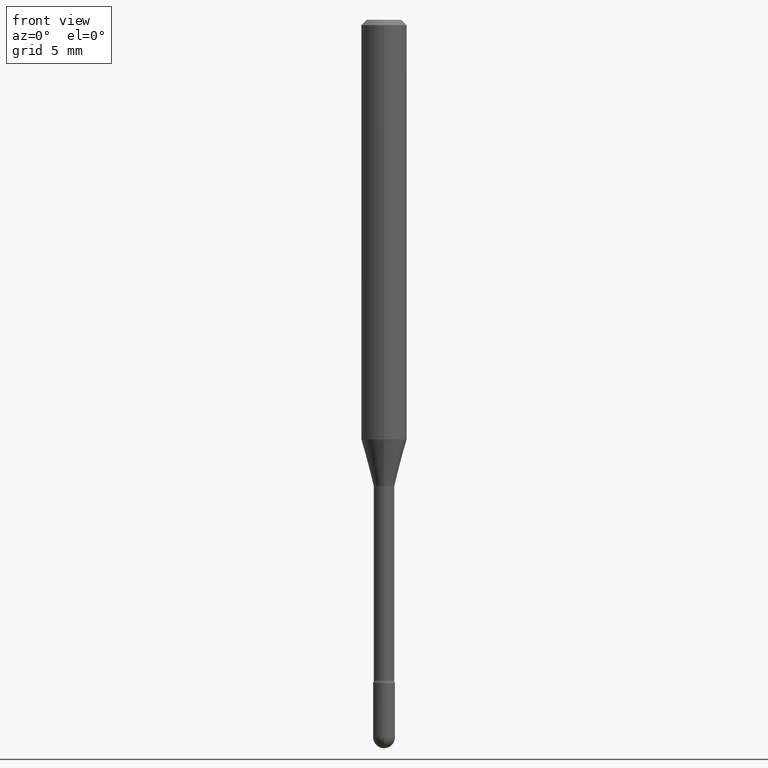
[diagram: clean part render]
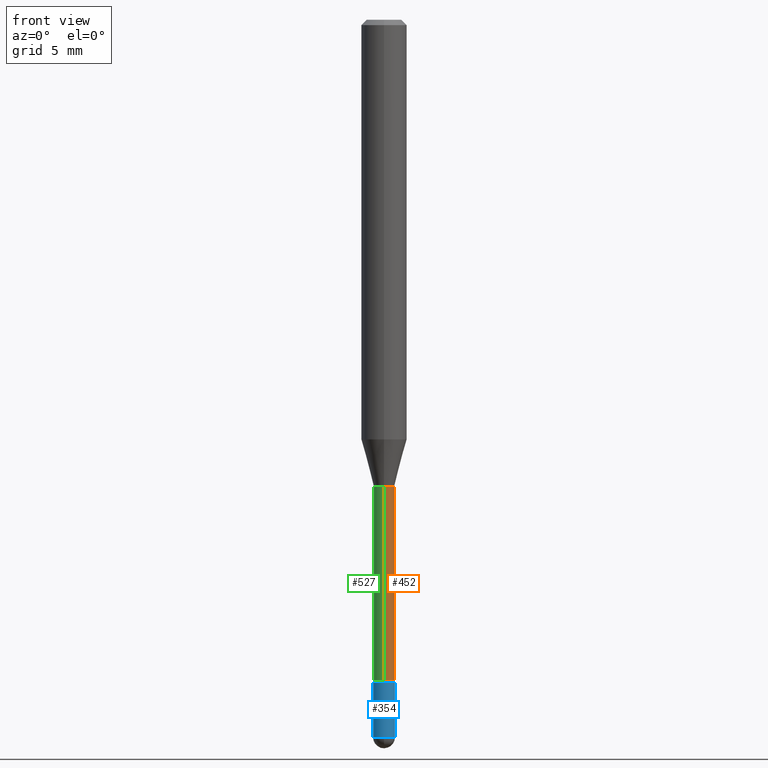
[diagram: same view with three faces highlighted in distinct colors, each labeled with its STEP entity id]
A machine part, front view with three faces highlighted in distinct colors.
Their STEP definitions:

[orange] entity #452 — the highlighted cylindrical surface (edge-blend (fillet) strip) has radius 0.7163 mm, axis along (-0, 0, 1).
#3 = CARTESIAN_POINT ( 'NONE',  ( -1.969195475107212711E-16, -0.02820000000000447149, -1.281974787463810994 ) ) ;
#4 = ORIENTED_EDGE ( 'NONE', *, *, #437, .T. ) ;
#27 = DIRECTION ( 'NONE',  ( -6.982962677686266711E-15, -1.000000000000000000, 0.000000000000000000 ) ) ;
#37 = DIRECTION ( 'NONE',  ( -6.982962677686265133E-15, -1.000000000000000000, 3.491497881522818297E-15 ) ) ;
#39 = ORIENTED_EDGE ( 'NONE', *, *, #45, .F. ) ;
#45 = EDGE_CURVE ( 'NONE', #384, #107, #211, .T. ) ;
#78 = AXIS2_PLACEMENT_3D ( 'NONE', #423, #160, #37 ) ;
#98 = CARTESIAN_POINT ( 'NONE',  ( 2.003730514843928186E-16, 0.02819999999999552032, -1.281974787463810994 ) ) ;
#107 = VERTEX_POINT ( 'NONE', #3 ) ;
#119 = DIRECTION ( 'NONE',  ( -2.445457254493661418E-29, 3.491497881522819481E-15, 1.000000000000000000 ) ) ;
#160 = DIRECTION ( 'NONE',  ( -2.445457254493661418E-29, 3.491497881522819481E-15, 1.000000000000000000 ) ) ;
#165 = LINE ( 'NONE', #472, #167 ) ;
#167 = VECTOR ( 'NONE', #344, 39.37007874015748143 ) ;
#177 = AXIS2_PLACEMENT_3D ( 'NONE', #381, #119, #27 ) ;
#194 = CARTESIAN_POINT ( 'NONE',  ( -1.969195475107089945E-16, -0.02820000000000642132, -1.812875394747777591 ) ) ;
#195 = ORIENTED_EDGE ( 'NONE', *, *, #480, .T. ) ;
#209 = CYLINDRICAL_SURFACE ( 'NONE', #78, 0.02820000000000004101 ) ;
#211 = LINE ( 'NONE', #254, #267 ) ;
#248 = VERTEX_POINT ( 'NONE', #98 ) ;
#254 = CARTESIAN_POINT ( 'NONE',  ( -1.969195475107529735E-16, -0.02820000000000004101, 5.765336391501896876E-16 ) ) ;
#259 = DIRECTION ( 'NONE',  ( -2.445457254493661418E-29, 3.491497881522819481E-15, 1.000000000000000000 ) ) ;
#267 = VECTOR ( 'NONE', #347, 39.37007874015748143 ) ;
#296 = DIRECTION ( 'NONE',  ( -6.982962677686265133E-15, -1.000000000000000000, 0.000000000000000000 ) ) ;
#335 = CIRCLE ( 'NONE', #177, 0.02820000000000008958 ) ;
#344 = DIRECTION ( 'NONE',  ( -2.445457254493661698E-29, 3.491497881522819086E-15, 1.000000000000000000 ) ) ;
#347 = DIRECTION ( 'NONE',  ( -2.445457254493661698E-29, 3.491497881522819086E-15, 1.000000000000000000 ) ) ;
#370 = CIRCLE ( 'NONE', #449, 0.02819999999999999243 ) ;
#381 = CARTESIAN_POINT ( 'NONE',  ( 4.433309285579012941E-29, -6.329650600226710445E-15, -1.812875394747777591 ) ) ;
#384 = VERTEX_POINT ( 'NONE', #194 ) ;
#417 = EDGE_LOOP ( 'NONE', ( #195, #4, #545, #39 ) ) ;
#422 = VERTEX_POINT ( 'NONE', #559 ) ;
#423 = CARTESIAN_POINT ( 'NONE',  ( -1.169113584055446105E-44, 1.669184350826100908E-30, 4.780733988912460139E-16 ) ) ;
#425 = EDGE_CURVE ( 'NONE', #107, #248, #370, .T. ) ;
#437 = EDGE_CURVE ( 'NONE', #422, #248, #165, .T. ) ;
#449 = AXIS2_PLACEMENT_3D ( 'NONE', #481, #259, #296 ) ;
#452 = ADVANCED_FACE ( 'NONE', ( #557 ), #209, .T. ) ;
#472 = CARTESIAN_POINT ( 'NONE',  ( 2.003730514843484945E-16, 0.02820000000000004101, 3.796131586323024389E-16 ) ) ;
#480 = EDGE_CURVE ( 'NONE', #384, #422, #335, .T. ) ;
#481 = CARTESIAN_POINT ( 'NONE',  ( 3.135014544081346677E-29, -4.476012254595563164E-15, -1.281974787463810994 ) ) ;
#545 = ORIENTED_EDGE ( 'NONE', *, *, #425, .F. ) ;
#557 = FACE_OUTER_BOUND ( 'NONE', #417, .T. ) ;
#559 = CARTESIAN_POINT ( 'NONE',  ( 2.067679361062337555E-16, 0.02819999999999376131, -1.812875394747777591 ) ) ;

[blue] entity #354 — the highlighted cylindrical surface (edge-blend (fillet) strip) has radius 0.762 mm, axis along (-0, 0, 1).
#14 = CARTESIAN_POINT ( 'NONE',  ( -0.03000000000000000583, 2.131628207280300972E-16, -1.475680527076471882E-30 ) ) ;
#28 = ORIENTED_EDGE ( 'NONE', *, *, #532, .T. ) ;
#34 = CARTESIAN_POINT ( 'NONE',  ( 4.450753227256948741E-29, -6.354496036694524637E-15, -1.820000000000000062 ) ) ;
#57 = DIRECTION ( 'NONE',  ( 1.000000000000000000, -6.982962677686266711E-15, 0.000000000000000000 ) ) ;
#64 = CARTESIAN_POINT ( 'NONE',  ( -0.02999999999999999889, -6.403194316379730971E-15, -1.820000000000000062 ) ) ;
#76 = VERTEX_POINT ( 'NONE', #493 ) ;
#101 = ORIENTED_EDGE ( 'NONE', *, *, #312, .T. ) ;
#103 = DIRECTION ( 'NONE',  ( -2.445468806185136877E-29, 3.491481338843145188E-15, 1.000000000000000000 ) ) ;
#105 = LINE ( 'NONE', #14, #253 ) ;
#109 = ORIENTED_EDGE ( 'NONE', *, *, #519, .F. ) ;
#114 = DIRECTION ( 'NONE',  ( -2.445468806185136597E-29, 3.491481338843145583E-15, 1.000000000000000000 ) ) ;
#118 = ORIENTED_EDGE ( 'NONE', *, *, #290, .F. ) ;
#145 = DIRECTION ( 'NONE',  ( 1.000000000000000000, -6.982962677686266711E-15, 4.876176775795935793E-29 ) ) ;
#149 = CIRCLE ( 'NONE', #413, 0.03000000000000000583 ) ;
#151 = VERTEX_POINT ( 'NONE', #268 ) ;
#157 = DIRECTION ( 'NONE',  ( -2.445468806185136877E-29, 3.491481338843145188E-15, 1.000000000000000000 ) ) ;
#190 = CYLINDRICAL_SURFACE ( 'NONE', #520, 0.03000000000000000583 ) ;
#191 = ORIENTED_EDGE ( 'NONE', *, *, #555, .T. ) ;
#223 = VECTOR ( 'NONE', #157, 39.37007874015748143 ) ;
#236 = VERTEX_POINT ( 'NONE', #64 ) ;
#239 = CARTESIAN_POINT ( 'NONE',  ( 0.000000000000000000, 0.000000000000000000, 0.000000000000000000 ) ) ;
#245 = DIRECTION ( 'NONE',  ( -2.445468806185136597E-29, 3.491481338843145583E-15, 1.000000000000000000 ) ) ;
#253 = VECTOR ( 'NONE', #103, 39.37007874015748143 ) ;
#268 = CARTESIAN_POINT ( 'NONE',  ( -0.03000000000000000583, -6.403194316379730971E-15, -1.969999999999999973 ) ) ;
#290 = EDGE_CURVE ( 'NONE', #151, #236, #105, .T. ) ;
#297 = CIRCLE ( 'NONE', #361, 0.02999999999999999889 ) ;
#312 = EDGE_CURVE ( 'NONE', #464, #382, #438, .T. ) ;
#314 = AXIS2_PLACEMENT_3D ( 'NONE', #466, #245, #57 ) ;
#320 = FACE_OUTER_BOUND ( 'NONE', #337, .T. ) ;
#336 = CARTESIAN_POINT ( 'NONE',  ( 4.817573548184719118E-29, -6.878218237520997007E-15, -1.969999999999999973 ) ) ;
#337 = EDGE_LOOP ( 'NONE', ( #118, #191, #101, #28, #109 ) ) ;
#340 = CARTESIAN_POINT ( 'NONE',  ( -2.131628207279818041E-16, -0.03000000000000686839, -1.969999999999999973 ) ) ;
#354 = ADVANCED_FACE ( 'NONE', ( #320 ), #190, .T. ) ;
#361 = AXIS2_PLACEMENT_3D ( 'NONE', #34, #433, #512 ) ;
#382 = VERTEX_POINT ( 'NONE', #461 ) ;
#394 = DIRECTION ( 'NONE',  ( 1.000000000000000000, -6.982962677686266711E-15, 0.000000000000000000 ) ) ;
#413 = AXIS2_PLACEMENT_3D ( 'NONE', #336, #114, #394 ) ;
#418 = DIRECTION ( 'NONE',  ( -2.445468806185136597E-29, 3.491481338843145583E-15, 1.000000000000000000 ) ) ;
#433 = DIRECTION ( 'NONE',  ( -2.445468806185136597E-29, 3.491481338843145583E-15, 1.000000000000000000 ) ) ;
#438 = CIRCLE ( 'NONE', #314, 0.03000000000000000583 ) ;
#461 = CARTESIAN_POINT ( 'NONE',  ( 0.03000000000000000583, -6.825846017438348744E-15, -1.969999999999999973 ) ) ;
#464 = VERTEX_POINT ( 'NONE', #340 ) ;
#466 = CARTESIAN_POINT ( 'NONE',  ( 4.817573548184719118E-29, -6.878218237520997007E-15, -1.969999999999999973 ) ) ;
#470 = LINE ( 'NONE', #551, #223 ) ;
#493 = CARTESIAN_POINT ( 'NONE',  ( 0.02999999999999999889, -6.563984917025112954E-15, -1.820000000000000062 ) ) ;
#512 = DIRECTION ( 'NONE',  ( 1.000000000000000000, -6.982962677686268288E-15, 0.000000000000000000 ) ) ;
#519 = EDGE_CURVE ( 'NONE', #236, #76, #297, .T. ) ;
#520 = AXIS2_PLACEMENT_3D ( 'NONE', #239, #418, #145 ) ;
#532 = EDGE_CURVE ( 'NONE', #382, #76, #470, .T. ) ;
#551 = CARTESIAN_POINT ( 'NONE',  ( 0.03000000000000000583, -2.094888803305880457E-16, 1.462853032738781053E-30 ) ) ;
#555 = EDGE_CURVE ( 'NONE', #151, #464, #149, .T. ) ;

[green] entity #527 — the highlighted cylindrical surface (edge-blend (fillet) strip) has radius 0.7163 mm, axis along (-0, 0, 1).
#3 = CARTESIAN_POINT ( 'NONE',  ( -1.969195475107212711E-16, -0.02820000000000447149, -1.281974787463810994 ) ) ;
#9 = CARTESIAN_POINT ( 'NONE',  ( 3.135014544081346677E-29, -4.476012254595563164E-15, -1.281974787463810994 ) ) ;
#31 = CIRCLE ( 'NONE', #121, 0.02820000000000008958 ) ;
#32 = AXIS2_PLACEMENT_3D ( 'NONE', #9, #220, #213 ) ;
#45 = EDGE_CURVE ( 'NONE', #384, #107, #211, .T. ) ;
#68 = DIRECTION ( 'NONE',  ( -6.982962677686266711E-15, -1.000000000000000000, 0.000000000000000000 ) ) ;
#85 = AXIS2_PLACEMENT_3D ( 'NONE', #294, #111, #475 ) ;
#98 = CARTESIAN_POINT ( 'NONE',  ( 2.003730514843928186E-16, 0.02819999999999552032, -1.281974787463810994 ) ) ;
#107 = VERTEX_POINT ( 'NONE', #3 ) ;
#111 = DIRECTION ( 'NONE',  ( -2.445457254493661418E-29, 3.491497881522819481E-15, 1.000000000000000000 ) ) ;
#113 = ORIENTED_EDGE ( 'NONE', *, *, #252, .T. ) ;
#121 = AXIS2_PLACEMENT_3D ( 'NONE', #278, #371, #68 ) ;
#158 = CIRCLE ( 'NONE', #32, 0.02819999999999999243 ) ;
#165 = LINE ( 'NONE', #472, #167 ) ;
#167 = VECTOR ( 'NONE', #344, 39.37007874015748143 ) ;
#194 = CARTESIAN_POINT ( 'NONE',  ( -1.969195475107089945E-16, -0.02820000000000642132, -1.812875394747777591 ) ) ;
#207 = ORIENTED_EDGE ( 'NONE', *, *, #437, .F. ) ;
#211 = LINE ( 'NONE', #254, #267 ) ;
#213 = DIRECTION ( 'NONE',  ( -6.982962677686265133E-15, -1.000000000000000000, 0.000000000000000000 ) ) ;
#220 = DIRECTION ( 'NONE',  ( -2.445457254493661418E-29, 3.491497881522819481E-15, 1.000000000000000000 ) ) ;
#248 = VERTEX_POINT ( 'NONE', #98 ) ;
#252 = EDGE_CURVE ( 'NONE', #422, #384, #31, .T. ) ;
#254 = CARTESIAN_POINT ( 'NONE',  ( -1.969195475107529735E-16, -0.02820000000000004101, 5.765336391501896876E-16 ) ) ;
#267 = VECTOR ( 'NONE', #347, 39.37007874015748143 ) ;
#278 = CARTESIAN_POINT ( 'NONE',  ( 4.433309285579012941E-29, -6.329650600226710445E-15, -1.812875394747777591 ) ) ;
#282 = ORIENTED_EDGE ( 'NONE', *, *, #45, .T. ) ;
#294 = CARTESIAN_POINT ( 'NONE',  ( -1.169113584055446105E-44, 1.669184350826100908E-30, 4.780733988912460139E-16 ) ) ;
#338 = FACE_OUTER_BOUND ( 'NONE', #467, .T. ) ;
#344 = DIRECTION ( 'NONE',  ( -2.445457254493661698E-29, 3.491497881522819086E-15, 1.000000000000000000 ) ) ;
#347 = DIRECTION ( 'NONE',  ( -2.445457254493661698E-29, 3.491497881522819086E-15, 1.000000000000000000 ) ) ;
#371 = DIRECTION ( 'NONE',  ( -2.445457254493661418E-29, 3.491497881522819481E-15, 1.000000000000000000 ) ) ;
#384 = VERTEX_POINT ( 'NONE', #194 ) ;
#422 = VERTEX_POINT ( 'NONE', #559 ) ;
#434 = ORIENTED_EDGE ( 'NONE', *, *, #565, .F. ) ;
#437 = EDGE_CURVE ( 'NONE', #422, #248, #165, .T. ) ;
#467 = EDGE_LOOP ( 'NONE', ( #207, #113, #282, #434 ) ) ;
#472 = CARTESIAN_POINT ( 'NONE',  ( 2.003730514843484945E-16, 0.02820000000000004101, 3.796131586323024389E-16 ) ) ;
#475 = DIRECTION ( 'NONE',  ( -6.982962677686265133E-15, -1.000000000000000000, 3.491497881522818297E-15 ) ) ;
#515 = CYLINDRICAL_SURFACE ( 'NONE', #85, 0.02820000000000004101 ) ;
#527 = ADVANCED_FACE ( 'NONE', ( #338 ), #515, .T. ) ;
#559 = CARTESIAN_POINT ( 'NONE',  ( 2.067679361062337555E-16, 0.02819999999999376131, -1.812875394747777591 ) ) ;
#565 = EDGE_CURVE ( 'NONE', #248, #107, #158, .T. ) ;